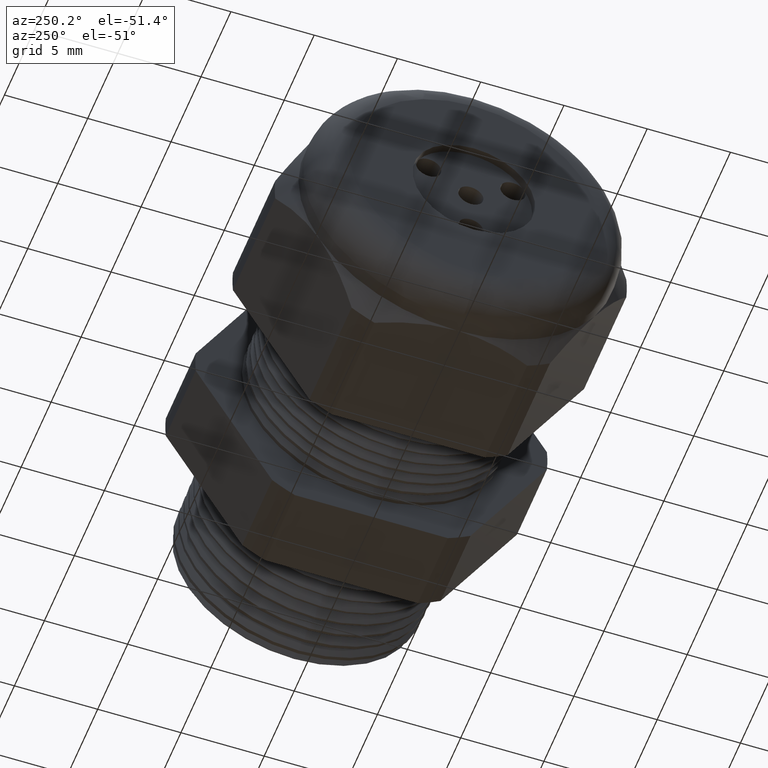
[diagram: clean part render]
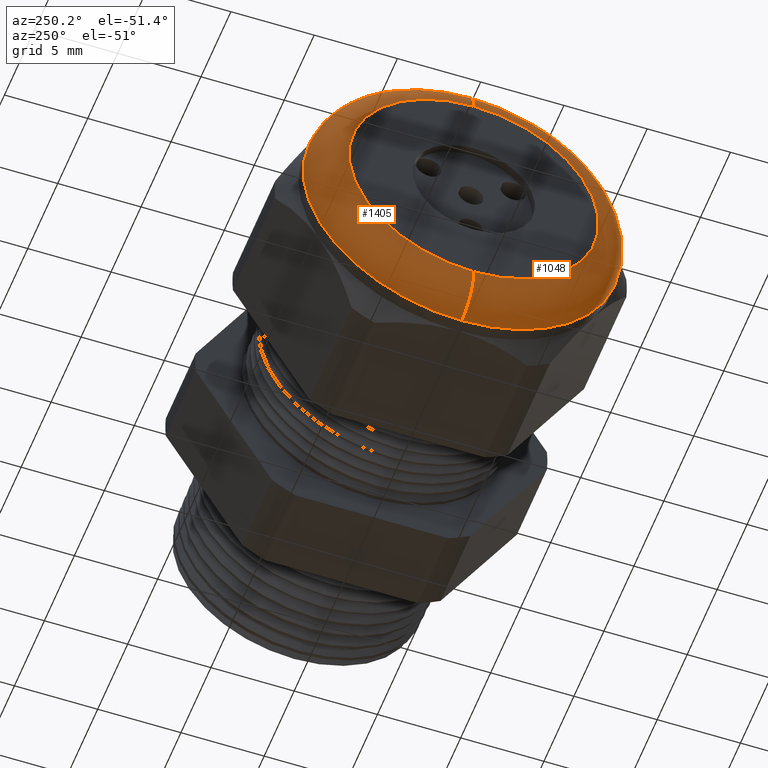
[diagram: same view with one multi-face feature highlighted, each face labeled with its STEP entity id]
A machine part, auxiliary view. The highlighted faces form ONE feature: a constant-radius fillet chain: 2 tangent blend faces with common blend radius 2.032 mm. The faces share edges in the B-rep.
Their STEP definitions:
[1] entity #1048 (Torus):
#895 = EDGE_CURVE ( 'NONE', #1413, #1416, #3211, .T. ) ;
#956 = EDGE_CURVE ( 'NONE', #1410, #1409, #3300, .T. ) ;
#1048 = ADVANCED_FACE ( 'NONE', ( #3425 ), #3424, .T. ) ;
#1049 = EDGE_LOOP ( 'NONE', ( #1112, #1113, #1114, #1115 ) ) ;
#1112 = ORIENTED_EDGE ( 'NONE', *, *, #1412, .F. ) ;
#1113 = ORIENTED_EDGE ( 'NONE', *, *, #956, .F. ) ;
#1114 = ORIENTED_EDGE ( 'NONE', *, *, #1389, .T. ) ;
#1115 = ORIENTED_EDGE ( 'NONE', *, *, #895, .F. ) ;
#1389 = EDGE_CURVE ( 'NONE', #1410, #1416, #3983, .T. ) ;
#1409 = VERTEX_POINT ( 'NONE', #4000 ) ;
#1410 = VERTEX_POINT ( 'NONE', #3999 ) ;
#1412 = EDGE_CURVE ( 'NONE', #1409, #1413, #3998, .T. ) ;
#1413 = VERTEX_POINT ( 'NONE', #3993 ) ;
#1416 = VERTEX_POINT ( 'NONE', #4049 ) ;
#3207 = DIRECTION ( 'NONE',  ( 0.0000000000000000000, 0.0000000000000000000, 1.000000000000000000 ) ) ;
#3208 = DIRECTION ( 'NONE',  ( -1.000000000000000000, 0.0000000000000000000, 0.0000000000000000000 ) ) ;
#3209 = CARTESIAN_POINT ( 'NONE',  ( -1.179999999999999900, 0.0000000000000000000, 0.0000000000000000000 ) ) ;
#3210 = AXIS2_PLACEMENT_3D ( 'NONE', #3209, #3208, #3207 ) ;
#3211 = CIRCLE ( 'NONE', #3210, 0.2950000000000001000 ) ;
#3297 = DIRECTION ( 'NONE',  ( 0.0000000000000000000, 0.0000000000000000000, 1.000000000000000000 ) ) ;
#3298 = DIRECTION ( 'NONE',  ( 1.000000000000000000, 0.0000000000000000000, 0.0000000000000000000 ) ) ;
#3299 = AXIS2_PLACEMENT_3D ( 'NONE', #3305, #3298, #3297 ) ;
#3300 = CIRCLE ( 'NONE', #3299, 0.3750000000000001100 ) ;
#3305 = CARTESIAN_POINT ( 'NONE',  ( -1.100000000000000100, 0.0000000000000000000, 0.0000000000000000000 ) ) ;
#3421 = DIRECTION ( 'NONE',  ( 0.0000000000000000000, 0.0000000000000000000, 1.000000000000000000 ) ) ;
#3422 = DIRECTION ( 'NONE',  ( -1.000000000000000000, 0.0000000000000000000, 0.0000000000000000000 ) ) ;
#3423 = AXIS2_PLACEMENT_3D ( 'NONE', #3430, #3422, #3421 ) ;
#3424 = TOROIDAL_SURFACE ( 'NONE', #3423, 0.2950000000000001000, 0.08000000000000000200 ) ;
#3425 = FACE_OUTER_BOUND ( 'NONE', #1049, .T. ) ;
#3430 = CARTESIAN_POINT ( 'NONE',  ( -1.100000000000000100, 0.0000000000000000000, 0.0000000000000000000 ) ) ;
#3979 = DIRECTION ( 'NONE',  ( 0.0000000000000000000, 0.0000000000000000000, -1.000000000000000000 ) ) ;
#3980 = DIRECTION ( 'NONE',  ( 0.0000000000000000000, -1.000000000000000000, 0.0000000000000000000 ) ) ;
#3981 = CARTESIAN_POINT ( 'NONE',  ( -1.100000000000000100, 0.0000000000000000000, 0.2950000000000001000 ) ) ;
#3982 = AXIS2_PLACEMENT_3D ( 'NONE', #3981, #3980, #3979 ) ;
#3983 = CIRCLE ( 'NONE', #3982, 0.08000000000000000200 ) ;
#3993 = CARTESIAN_POINT ( 'NONE',  ( -1.179999999999999900, 4.102566777143634000E-017, -0.2950000000000001000 ) ) ;
#3994 = DIRECTION ( 'NONE',  ( 0.0000000000000000000, -1.224646799147353500E-016, 1.000000000000000000 ) ) ;
#3995 = DIRECTION ( 'NONE',  ( 0.0000000000000000000, 1.000000000000000000, 1.224646799147353200E-016 ) ) ;
#3996 = CARTESIAN_POINT ( 'NONE',  ( -1.100000000000000100, 3.612708057484693200E-017, -0.2950000000000001000 ) ) ;
#3997 = AXIS2_PLACEMENT_3D ( 'NONE', #3996, #3995, #3994 ) ;
#3998 = CIRCLE ( 'NONE', #3997, 0.08000000000000000200 ) ;
#3999 = CARTESIAN_POINT ( 'NONE',  ( -1.100000000000000100, 4.592425496802576100E-017, 0.3750000000000001100 ) ) ;
#4000 = CARTESIAN_POINT ( 'NONE',  ( -1.100000000000000100, 0.0000000000000000000, -0.3750000000000001100 ) ) ;
#4049 = CARTESIAN_POINT ( 'NONE',  ( -1.179999999999999900, 0.0000000000000000000, 0.2950000000000001000 ) ) ;
[2] entity #1405 (Torus):
#1388 = ORIENTED_EDGE ( 'NONE', *, *, #1389, .F. ) ;
#1389 = EDGE_CURVE ( 'NONE', #1410, #1416, #3983, .T. ) ;
#1405 = ADVANCED_FACE ( 'NONE', ( #4011 ), #4009, .T. ) ;
#1406 = EDGE_LOOP ( 'NONE', ( #1407, #1411, #1414, #1388 ) ) ;
#1407 = ORIENTED_EDGE ( 'NONE', *, *, #1408, .F. ) ;
#1408 = EDGE_CURVE ( 'NONE', #1409, #1410, #4005, .T. ) ;
#1409 = VERTEX_POINT ( 'NONE', #4000 ) ;
#1410 = VERTEX_POINT ( 'NONE', #3999 ) ;
#1411 = ORIENTED_EDGE ( 'NONE', *, *, #1412, .T. ) ;
#1412 = EDGE_CURVE ( 'NONE', #1409, #1413, #3998, .T. ) ;
#1413 = VERTEX_POINT ( 'NONE', #3993 ) ;
#1414 = ORIENTED_EDGE ( 'NONE', *, *, #1415, .F. ) ;
#1415 = EDGE_CURVE ( 'NONE', #1416, #1413, #3992, .T. ) ;
#1416 = VERTEX_POINT ( 'NONE', #4049 ) ;
#3979 = DIRECTION ( 'NONE',  ( 0.0000000000000000000, 0.0000000000000000000, -1.000000000000000000 ) ) ;
#3980 = DIRECTION ( 'NONE',  ( 0.0000000000000000000, -1.000000000000000000, 0.0000000000000000000 ) ) ;
#3981 = CARTESIAN_POINT ( 'NONE',  ( -1.100000000000000100, 0.0000000000000000000, 0.2950000000000001000 ) ) ;
#3982 = AXIS2_PLACEMENT_3D ( 'NONE', #3981, #3980, #3979 ) ;
#3983 = CIRCLE ( 'NONE', #3982, 0.08000000000000000200 ) ;
#3992 = CIRCLE ( 'NONE', #4053, 0.2950000000000001000 ) ;
#3993 = CARTESIAN_POINT ( 'NONE',  ( -1.179999999999999900, 4.102566777143634000E-017, -0.2950000000000001000 ) ) ;
#3994 = DIRECTION ( 'NONE',  ( 0.0000000000000000000, -1.224646799147353500E-016, 1.000000000000000000 ) ) ;
#3995 = DIRECTION ( 'NONE',  ( 0.0000000000000000000, 1.000000000000000000, 1.224646799147353200E-016 ) ) ;
#3996 = CARTESIAN_POINT ( 'NONE',  ( -1.100000000000000100, 3.612708057484693200E-017, -0.2950000000000001000 ) ) ;
#3997 = AXIS2_PLACEMENT_3D ( 'NONE', #3996, #3995, #3994 ) ;
#3998 = CIRCLE ( 'NONE', #3997, 0.08000000000000000200 ) ;
#3999 = CARTESIAN_POINT ( 'NONE',  ( -1.100000000000000100, 4.592425496802576100E-017, 0.3750000000000001100 ) ) ;
#4000 = CARTESIAN_POINT ( 'NONE',  ( -1.100000000000000100, 0.0000000000000000000, -0.3750000000000001100 ) ) ;
#4001 = DIRECTION ( 'NONE',  ( 0.0000000000000000000, 0.0000000000000000000, 1.000000000000000000 ) ) ;
#4002 = DIRECTION ( 'NONE',  ( 1.000000000000000000, 0.0000000000000000000, 0.0000000000000000000 ) ) ;
#4003 = CARTESIAN_POINT ( 'NONE',  ( -1.100000000000000100, 0.0000000000000000000, 0.0000000000000000000 ) ) ;
#4004 = AXIS2_PLACEMENT_3D ( 'NONE', #4003, #4002, #4001 ) ;
#4005 = CIRCLE ( 'NONE', #4004, 0.3750000000000001100 ) ;
#4006 = DIRECTION ( 'NONE',  ( 0.0000000000000000000, 0.0000000000000000000, 1.000000000000000000 ) ) ;
#4007 = DIRECTION ( 'NONE',  ( -1.000000000000000000, 0.0000000000000000000, 0.0000000000000000000 ) ) ;
#4008 = AXIS2_PLACEMENT_3D ( 'NONE', #4010, #4007, #4006 ) ;
#4009 = TOROIDAL_SURFACE ( 'NONE', #4008, 0.2950000000000001000, 0.08000000000000000200 ) ;
#4010 = CARTESIAN_POINT ( 'NONE',  ( -1.100000000000000100, 0.0000000000000000000, 0.0000000000000000000 ) ) ;
#4011 = FACE_OUTER_BOUND ( 'NONE', #1406, .T. ) ;
#4049 = CARTESIAN_POINT ( 'NONE',  ( -1.179999999999999900, 0.0000000000000000000, 0.2950000000000001000 ) ) ;
#4050 = DIRECTION ( 'NONE',  ( 0.0000000000000000000, 0.0000000000000000000, 1.000000000000000000 ) ) ;
#4051 = DIRECTION ( 'NONE',  ( -1.000000000000000000, 0.0000000000000000000, 0.0000000000000000000 ) ) ;
#4052 = CARTESIAN_POINT ( 'NONE',  ( -1.179999999999999900, 0.0000000000000000000, 0.0000000000000000000 ) ) ;
#4053 = AXIS2_PLACEMENT_3D ( 'NONE', #4052, #4051, #4050 ) ;